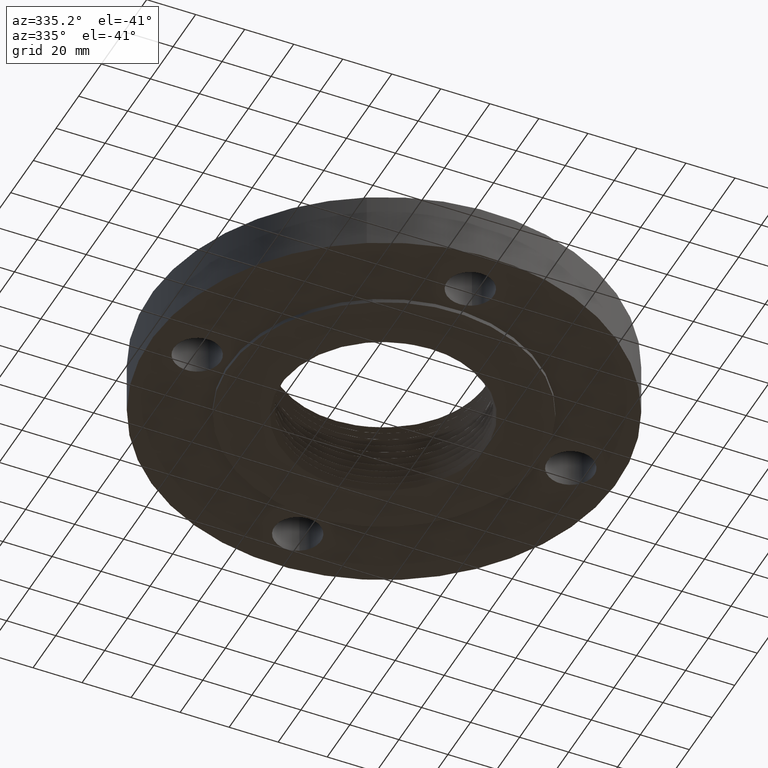
[diagram: clean part render]
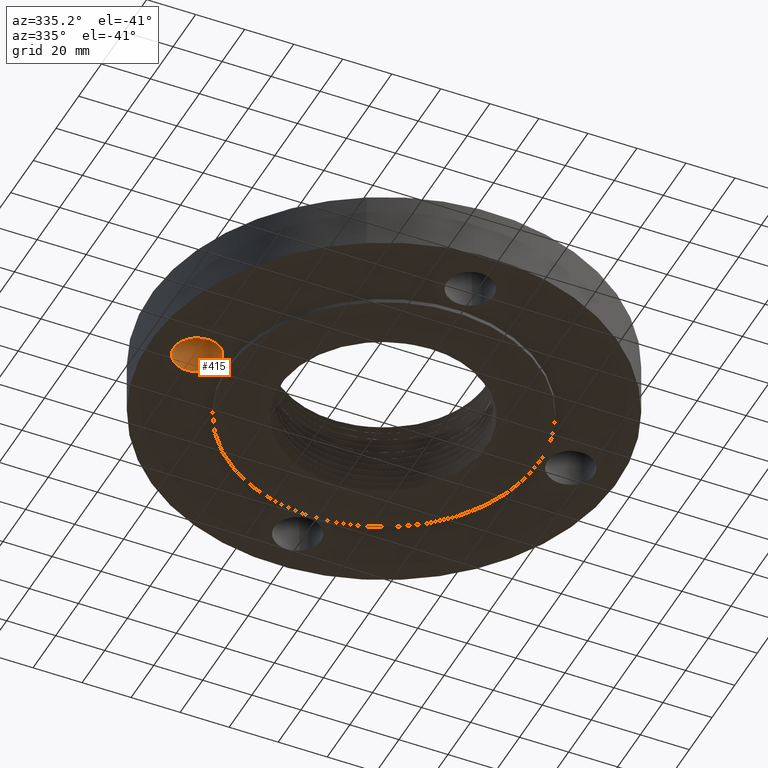
[diagram: same view with one face highlighted and labeled with its STEP entity id]
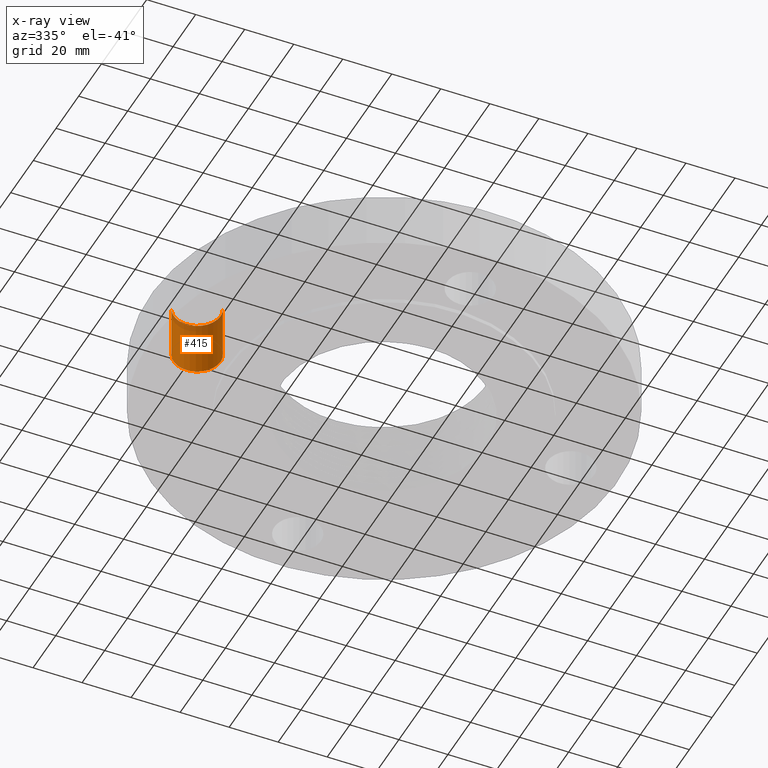
[diagram: x-ray of the same camera — body ghosted, the highlighted face saturated]
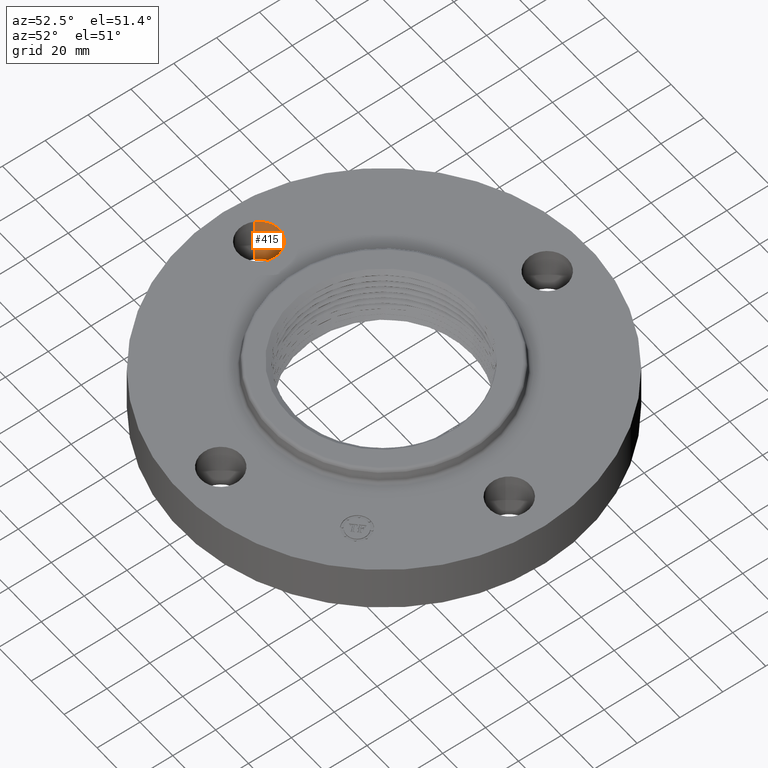
[diagram: same view with one face highlighted and labeled with its STEP entity id]
A machine part, auxiliary view. The second image highlights one B-rep face of the part: STEP entity #415.
The next image is the same camera in x-ray: the body ghosted, the highlighted face saturated — about 13% of this face is hidden behind the body in this view.
A second angle (auxiliary view) of the same face is appended — the face is thin or edge-on in the first view.
In plain terms, the highlighted cylindrical surface (edge-blend (fillet) strip) has radius 9.525 mm, axis along (-0, 0, -1).
Its self-contained STEP definition (entity closure, byte-faithful):
#379=AXIS2_PLACEMENT_3D('Cylinder Axis2P3D',#376,#377,#378) ;
#392=AXIS2_PLACEMENT_3D('Circle Axis2P3D',#390,#391,$) ;
#406=AXIS2_PLACEMENT_3D('Circle Axis2P3D',#404,#405,$) ;
#376=CARTESIAN_POINT('Axis2P3D Location',(-3.00000000001,-3.67394039746E-016,0.87606299213)) ;
#381=CARTESIAN_POINT('Line Origine',(-3.32909346072,0.179784576977,0.440000000002)) ;
#385=CARTESIAN_POINT('Vertex',(-3.32909346072,0.179784576977,0.)) ;
#387=CARTESIAN_POINT('Vertex',(-3.32909346072,0.179784576977,0.880000000004)) ;
#390=CARTESIAN_POINT('Axis2P3D Location',(-3.00000000001,-3.67394039746E-016,0.)) ;
#394=CARTESIAN_POINT('Vertex',(-2.6709065393,-0.179784576977,0.)) ;
#397=CARTESIAN_POINT('Line Origine',(-2.6709065393,-0.179784576977,0.440000000002)) ;
#401=CARTESIAN_POINT('Vertex',(-2.6709065393,-0.179784576977,0.880000000004)) ;
#404=CARTESIAN_POINT('Axis2P3D Location',(-3.00000000001,-3.67394039746E-016,0.880000000004)) ;
#377=DIRECTION('Axis2P3D Direction',(-0.,0.,-0.0393700787402)) ;
#378=DIRECTION('Axis2P3D XDirection',(0.0345504945626,-0.0188750212049,-0.)) ;
#382=DIRECTION('Vector Direction',(0.,0.,-0.0393700787402)) ;
#391=DIRECTION('Axis2P3D Direction',(-0.,0.,-0.0393700787402)) ;
#398=DIRECTION('Vector Direction',(0.,0.,-0.0393700787402)) ;
#405=DIRECTION('Axis2P3D Direction',(-0.,0.,-0.0393700787402)) ;
#383=VECTOR('Line Direction',#382,0.0393700787402) ;
#399=VECTOR('Line Direction',#398,0.0393700787402) ;
#410=ORIENTED_EDGE('',*,*,#389,.F.) ;
#411=ORIENTED_EDGE('',*,*,#396,.T.) ;
#412=ORIENTED_EDGE('',*,*,#403,.T.) ;
#413=ORIENTED_EDGE('',*,*,#408,.F.) ;
#415=ADVANCED_FACE('PartBody',(#414),#380,.F.) ;
#393=CIRCLE('generated circle',#392,0.375000000001) ;
#407=CIRCLE('generated circle',#406,0.375000000001) ;
#380=CYLINDRICAL_SURFACE('generated cylinder',#379,0.375000000001) ;
#389=EDGE_CURVE('',#386,#388,#384,.F.) ;
#396=EDGE_CURVE('',#386,#395,#393,.T.) ;
#403=EDGE_CURVE('',#395,#402,#400,.F.) ;
#408=EDGE_CURVE('',#388,#402,#407,.T.) ;
#409=EDGE_LOOP('',(#410,#411,#412,#413)) ;
#414=FACE_OUTER_BOUND('',#409,.T.) ;
#384=LINE('Line',#381,#383) ;
#400=LINE('Line',#397,#399) ;
#386=VERTEX_POINT('',#385) ;
#388=VERTEX_POINT('',#387) ;
#395=VERTEX_POINT('',#394) ;
#402=VERTEX_POINT('',#401) ;